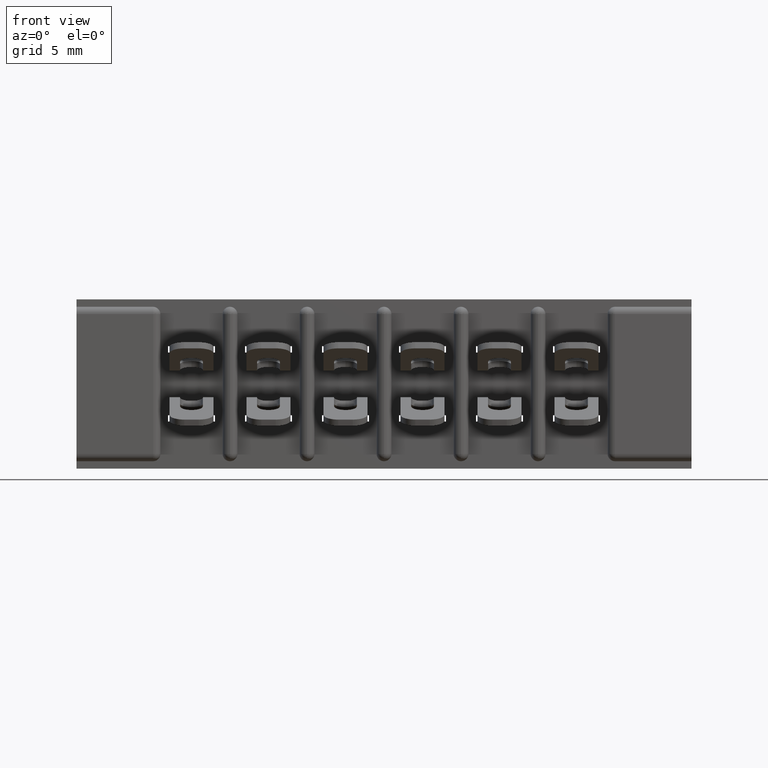
[diagram: clean part render]
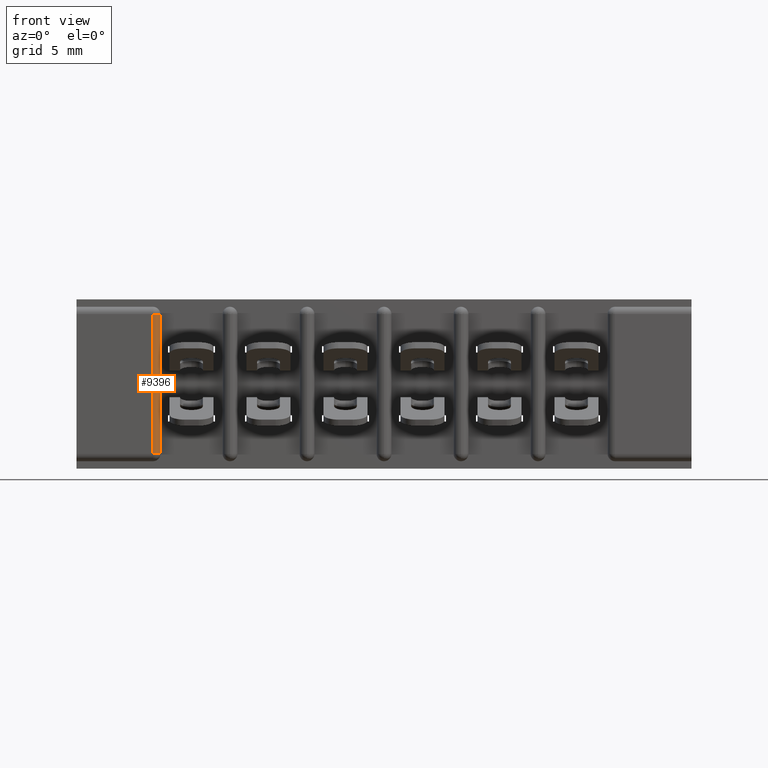
[diagram: same view with one face highlighted and labeled with its STEP entity id]
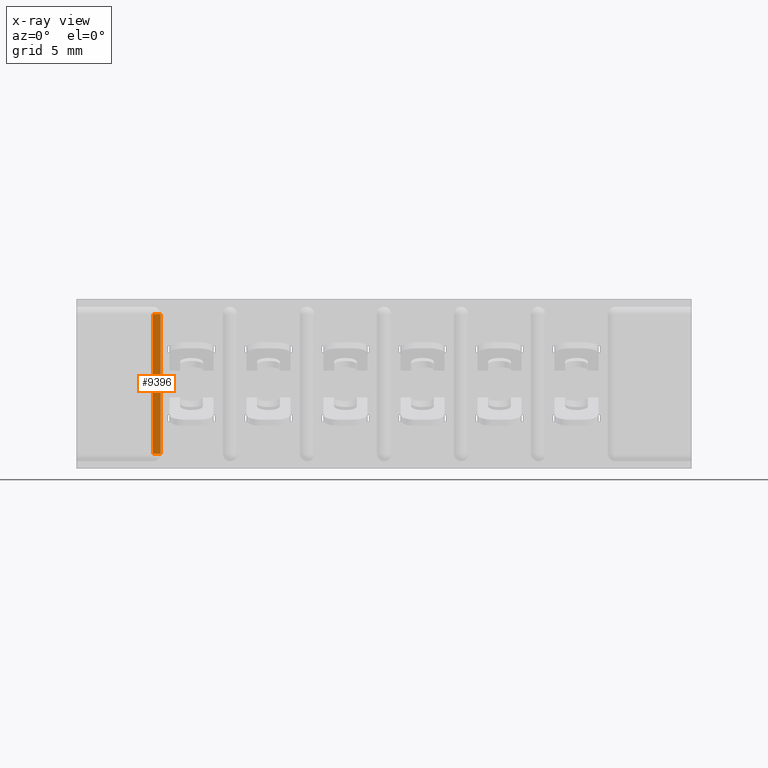
[diagram: x-ray of the same camera — body ghosted, the highlighted face saturated]
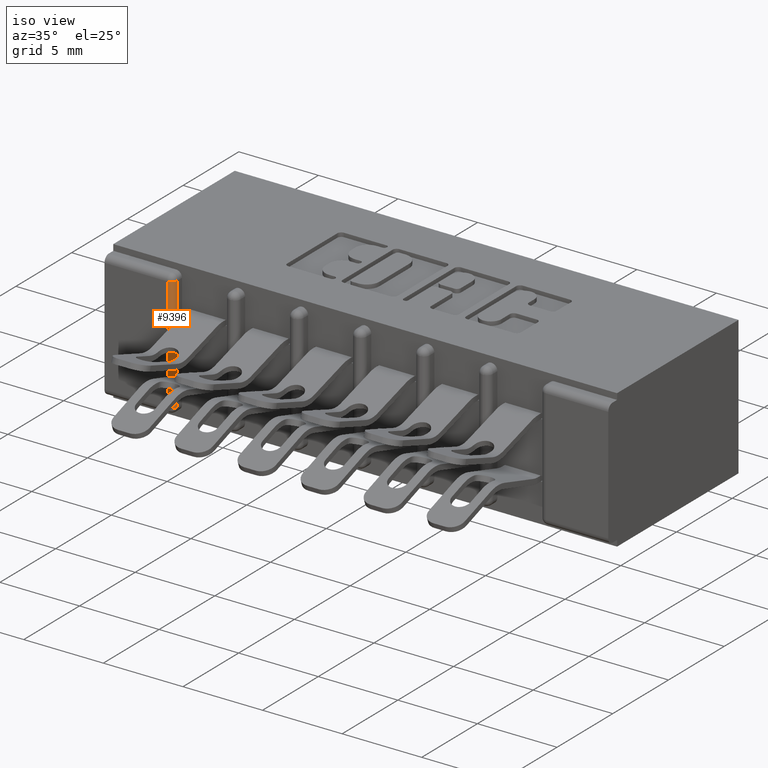
[diagram: same view with one face highlighted and labeled with its STEP entity id]
A machine part, front view. The second image highlights one B-rep face of the part: STEP entity #9396.
The next image is the same camera in x-ray: the body ghosted, the highlighted face saturated — about 0% of this face is hidden behind the body in this view.
A second angle (iso view) of the same face is appended — the face is thin or edge-on in the first view.
In plain terms, the highlighted cylindrical surface (edge-blend (fillet) strip) has radius 0.381 mm, axis along (0, 0, 1).
Its self-contained STEP definition (entity closure, byte-faithful):
#225 = EDGE_LOOP ( 'NONE', ( #8591, #787, #10332, #5106 ) ) ;
#242 = VECTOR ( 'NONE', #1689, 39.37007874015748100 ) ;
#331 = VERTEX_POINT ( 'NONE', #10709 ) ;
#787 = ORIENTED_EDGE ( 'NONE', *, *, #5280, .F. ) ;
#1661 = EDGE_CURVE ( 'NONE', #6966, #9146, #1727, .T. ) ;
#1689 = DIRECTION ( 'NONE',  ( -0.0000000000000000000, -0.0000000000000000000, 1.000000000000000000 ) ) ;
#1727 = CIRCLE ( 'NONE', #2939, 0.01499999999999997700 ) ;
#1824 = VECTOR ( 'NONE', #5406, 39.37007874015748100 ) ;
#1861 = LINE ( 'NONE', #6924, #242 ) ;
#2842 = VERTEX_POINT ( 'NONE', #8419 ) ;
#2939 = AXIS2_PLACEMENT_3D ( 'NONE', #7433, #4928, #5779 ) ;
#3246 = CARTESIAN_POINT ( 'NONE',  ( 0.4680000000000001900, 0.01499999999999997700, -0.02999999999999995400 ) ) ;
#3886 = CARTESIAN_POINT ( 'NONE',  ( 0.4530000000000001800, 0.01499999999999997700, -0.4680000000000006900 ) ) ;
#4928 = DIRECTION ( 'NONE',  ( 0.0000000000000000000, 0.0000000000000000000, 1.000000000000000000 ) ) ;
#5106 = ORIENTED_EDGE ( 'NONE', *, *, #6870, .F. ) ;
#5280 = EDGE_CURVE ( 'NONE', #331, #6966, #1861, .T. ) ;
#5406 = DIRECTION ( 'NONE',  ( 0.0000000000000000000, 0.0000000000000000000, -1.000000000000000000 ) ) ;
#5685 = DIRECTION ( 'NONE',  ( 0.0000000000000000000, 0.0000000000000000000, 1.000000000000000000 ) ) ;
#5779 = DIRECTION ( 'NONE',  ( 1.000000000000000000, 0.0000000000000000000, 0.0000000000000000000 ) ) ;
#5825 = CIRCLE ( 'NONE', #9412, 0.01499999999999997700 ) ;
#6287 = FACE_OUTER_BOUND ( 'NONE', #225, .T. ) ;
#6488 = LINE ( 'NONE', #10462, #1824 ) ;
#6828 = CYLINDRICAL_SURFACE ( 'NONE', #7174, 0.01499999999999997700 ) ;
#6851 = DIRECTION ( 'NONE',  ( -0.0000000000000000000, 0.0000000000000000000, 1.000000000000000000 ) ) ;
#6870 = EDGE_CURVE ( 'NONE', #9146, #2842, #6488, .T. ) ;
#6924 = CARTESIAN_POINT ( 'NONE',  ( 0.4530000000000001800, 0.0000000000000000000, -0.02999999999999995400 ) ) ;
#6966 = VERTEX_POINT ( 'NONE', #8926 ) ;
#7174 = AXIS2_PLACEMENT_3D ( 'NONE', #3886, #5685, #8305 ) ;
#7433 = CARTESIAN_POINT ( 'NONE',  ( 0.4530000000000001800, 0.01499999999999999900, -0.02999999999999995400 ) ) ;
#8305 = DIRECTION ( 'NONE',  ( 1.000000000000000000, 0.0000000000000000000, 0.0000000000000000000 ) ) ;
#8403 = DIRECTION ( 'NONE',  ( 1.000000000000000000, 0.0000000000000000000, 0.0000000000000000000 ) ) ;
#8419 = CARTESIAN_POINT ( 'NONE',  ( 0.4680000000000001900, 0.01499999999999997700, -0.3130000000000000600 ) ) ;
#8591 = ORIENTED_EDGE ( 'NONE', *, *, #1661, .F. ) ;
#8926 = CARTESIAN_POINT ( 'NONE',  ( 0.4530000000000001800, 0.0000000000000000000, -0.02999999999999995400 ) ) ;
#9146 = VERTEX_POINT ( 'NONE', #3246 ) ;
#9332 = CARTESIAN_POINT ( 'NONE',  ( 0.4530000000000003500, 0.01499999999999999900, -0.3130000000000000600 ) ) ;
#9396 = ADVANCED_FACE ( 'NONE', ( #6287 ), #6828, .T. ) ;
#9412 = AXIS2_PLACEMENT_3D ( 'NONE', #9332, #6851, #8403 ) ;
#10332 = ORIENTED_EDGE ( 'NONE', *, *, #10461, .T. ) ;
#10461 = EDGE_CURVE ( 'NONE', #331, #2842, #5825, .T. ) ;
#10462 = CARTESIAN_POINT ( 'NONE',  ( 0.4680000000000001900, 0.01499999999999997700, -0.3130000000000000600 ) ) ;
#10709 = CARTESIAN_POINT ( 'NONE',  ( 0.4530000000000003500, 0.0000000000000000000, -0.3130000000000000600 ) ) ;